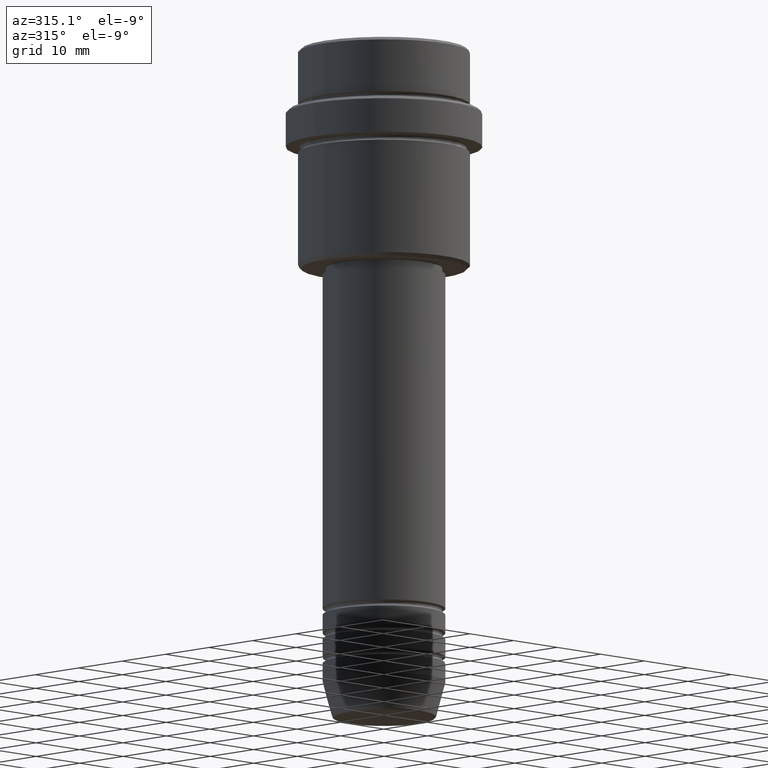
[diagram: clean part render]
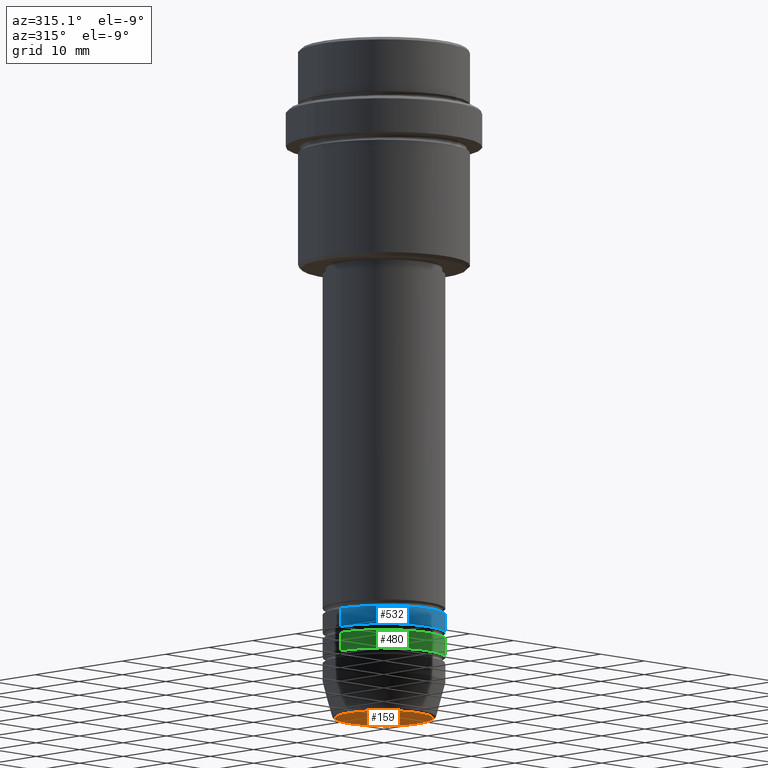
[diagram: same view with three faces highlighted in distinct colors, each labeled with its STEP entity id]
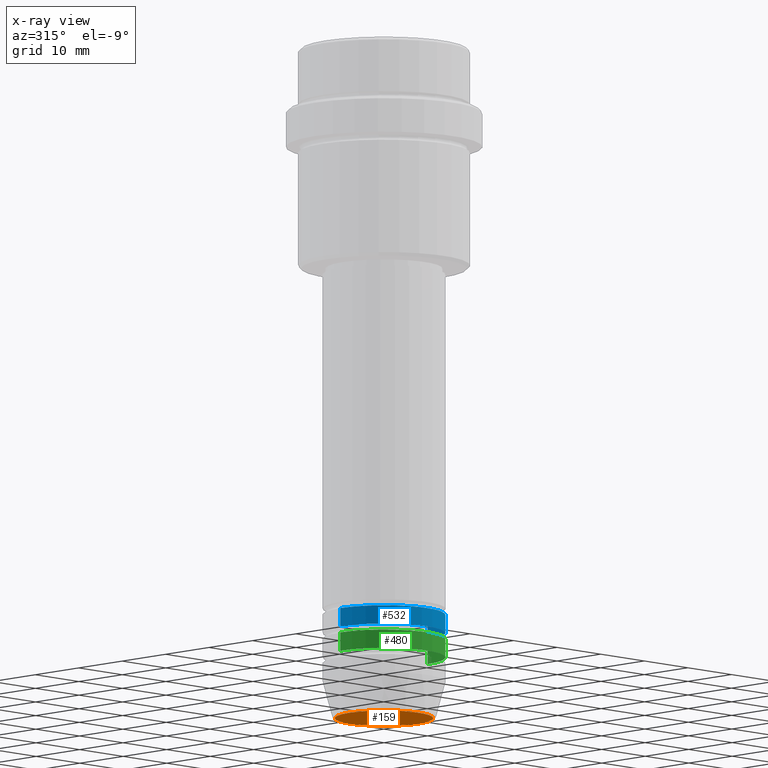
[diagram: x-ray of the same camera — body ghosted, the three highlighted faces saturated]
A machine part, auxiliary view with three faces highlighted in distinct colors.
The next image is the same camera in x-ray (body ghosted, the three faces saturated) — at least one of them is partly hidden behind the body in this view.
Their STEP definitions:

[orange] entity #159 — the highlighted planar face has unit normal (0, -0, 1).
#51 = CIRCLE ( 'NONE', #863, 8.008641351423779753 ) ;
#64 = CARTESIAN_POINT ( 'NONE',  ( 0.000000000000000000, 0.000000000000000000, -110.0000000000000142 ) ) ;
#147 = CIRCLE ( 'NONE', #515, 8.008641351423779753 ) ;
#159 = ADVANCED_FACE ( 'NONE', ( #1313 ), #1010, .F. ) ;
#252 = CARTESIAN_POINT ( 'NONE',  ( -8.008641351423779753, 1.010348648938493172E-15, -110.0000000000000142 ) ) ;
#304 = EDGE_CURVE ( 'NONE', #607, #1402, #51, .T. ) ;
#359 = AXIS2_PLACEMENT_3D ( 'NONE', #464, #904, #361 ) ;
#361 = DIRECTION ( 'NONE',  ( 1.000000000000000000, 0.000000000000000000, 0.000000000000000000 ) ) ;
#436 = DIRECTION ( 'NONE',  ( 0.000000000000000000, 0.000000000000000000, -1.000000000000000000 ) ) ;
#443 = EDGE_LOOP ( 'NONE', ( #1286, #543 ) ) ;
#464 = CARTESIAN_POINT ( 'NONE',  ( 0.000000000000000000, 0.000000000000000000, -110.0000000000000142 ) ) ;
#503 = DIRECTION ( 'NONE',  ( 0.000000000000000000, 0.000000000000000000, -1.000000000000000000 ) ) ;
#515 = AXIS2_PLACEMENT_3D ( 'NONE', #64, #503, #846 ) ;
#543 = ORIENTED_EDGE ( 'NONE', *, *, #304, .T. ) ;
#607 = VERTEX_POINT ( 'NONE', #252 ) ;
#815 = CARTESIAN_POINT ( 'NONE',  ( 8.008641351423779753, 0.000000000000000000, -110.0000000000000142 ) ) ;
#846 = DIRECTION ( 'NONE',  ( 1.000000000000000000, 0.000000000000000000, 0.000000000000000000 ) ) ;
#860 = EDGE_CURVE ( 'NONE', #1402, #607, #147, .T. ) ;
#863 = AXIS2_PLACEMENT_3D ( 'NONE', #1088, #436, #875 ) ;
#875 = DIRECTION ( 'NONE',  ( 1.000000000000000000, 0.000000000000000000, 0.000000000000000000 ) ) ;
#904 = DIRECTION ( 'NONE',  ( 0.000000000000000000, -0.000000000000000000, 1.000000000000000000 ) ) ;
#1010 = PLANE ( 'NONE',  #359 ) ;
#1088 = CARTESIAN_POINT ( 'NONE',  ( 0.000000000000000000, 0.000000000000000000, -110.0000000000000142 ) ) ;
#1286 = ORIENTED_EDGE ( 'NONE', *, *, #860, .T. ) ;
#1313 = FACE_OUTER_BOUND ( 'NONE', #443, .T. ) ;
#1402 = VERTEX_POINT ( 'NONE', #815 ) ;

[blue] entity #532 — the highlighted cylindrical surface (partial cylindrical patch) has radius 10 mm, axis along (-0, -0, 1).
#57 = AXIS2_PLACEMENT_3D ( 'NONE', #569, #539, #1311 ) ;
#85 = DIRECTION ( 'NONE',  ( -0.000000000000000000, -0.000000000000000000, 1.000000000000000000 ) ) ;
#100 = DIRECTION ( 'NONE',  ( 1.000000000000000000, 0.000000000000000000, 0.000000000000000000 ) ) ;
#144 = AXIS2_PLACEMENT_3D ( 'NONE', #415, #311, #1369 ) ;
#212 = CARTESIAN_POINT ( 'NONE',  ( 10.00000000000000000, 0.000000000000000000, -95.99999999999988631 ) ) ;
#223 = ORIENTED_EDGE ( 'NONE', *, *, #1110, .T. ) ;
#229 = CARTESIAN_POINT ( 'NONE',  ( -10.00000000000000000, 1.224646799147353256E-15, -92.99999999999988631 ) ) ;
#290 = VERTEX_POINT ( 'NONE', #212 ) ;
#311 = DIRECTION ( 'NONE',  ( -0.000000000000000000, -0.000000000000000000, 1.000000000000000000 ) ) ;
#364 = ORIENTED_EDGE ( 'NONE', *, *, #979, .T. ) ;
#415 = CARTESIAN_POINT ( 'NONE',  ( 0.000000000000000000, 0.000000000000000000, 0.000000000000000000 ) ) ;
#434 = VECTOR ( 'NONE', #85, 1000.000000000000000 ) ;
#532 = ADVANCED_FACE ( 'NONE', ( #944 ), #1275, .T. ) ;
#539 = DIRECTION ( 'NONE',  ( -0.000000000000000000, -0.000000000000000000, 1.000000000000000000 ) ) ;
#569 = CARTESIAN_POINT ( 'NONE',  ( 0.000000000000000000, 0.000000000000000000, -92.99999999999988631 ) ) ;
#584 = AXIS2_PLACEMENT_3D ( 'NONE', #764, #771, #100 ) ;
#610 = DIRECTION ( 'NONE',  ( -0.000000000000000000, -0.000000000000000000, 1.000000000000000000 ) ) ;
#628 = LINE ( 'NONE', #858, #1005 ) ;
#680 = CARTESIAN_POINT ( 'NONE',  ( 10.00000000000000000, 0.000000000000000000, -92.99999999999988631 ) ) ;
#764 = CARTESIAN_POINT ( 'NONE',  ( 0.000000000000000000, 0.000000000000000000, -95.99999999999988631 ) ) ;
#771 = DIRECTION ( 'NONE',  ( -0.000000000000000000, -0.000000000000000000, 1.000000000000000000 ) ) ;
#832 = ORIENTED_EDGE ( 'NONE', *, *, #955, .F. ) ;
#844 = CIRCLE ( 'NONE', #584, 10.00000000000000000 ) ;
#851 = CARTESIAN_POINT ( 'NONE',  ( -10.00000000000000000, 1.224646799147353256E-15, 0.000000000000000000 ) ) ;
#855 = EDGE_LOOP ( 'NONE', ( #832, #223, #364, #1070 ) ) ;
#858 = CARTESIAN_POINT ( 'NONE',  ( 10.00000000000000000, 0.000000000000000000, 0.000000000000000000 ) ) ;
#901 = VERTEX_POINT ( 'NONE', #680 ) ;
#944 = FACE_OUTER_BOUND ( 'NONE', #855, .T. ) ;
#955 = EDGE_CURVE ( 'NONE', #1321, #1296, #1073, .T. ) ;
#979 = EDGE_CURVE ( 'NONE', #290, #901, #628, .T. ) ;
#1005 = VECTOR ( 'NONE', #610, 1000.000000000000000 ) ;
#1070 = ORIENTED_EDGE ( 'NONE', *, *, #1089, .F. ) ;
#1073 = LINE ( 'NONE', #851, #434 ) ;
#1089 = EDGE_CURVE ( 'NONE', #1296, #901, #1115, .T. ) ;
#1110 = EDGE_CURVE ( 'NONE', #1321, #290, #844, .T. ) ;
#1115 = CIRCLE ( 'NONE', #57, 10.00000000000000000 ) ;
#1275 = CYLINDRICAL_SURFACE ( 'NONE', #144, 10.00000000000000000 ) ;
#1296 = VERTEX_POINT ( 'NONE', #229 ) ;
#1298 = CARTESIAN_POINT ( 'NONE',  ( -10.00000000000000000, 1.224646799147353256E-15, -95.99999999999988631 ) ) ;
#1311 = DIRECTION ( 'NONE',  ( 1.000000000000000000, 0.000000000000000000, 0.000000000000000000 ) ) ;
#1321 = VERTEX_POINT ( 'NONE', #1298 ) ;
#1369 = DIRECTION ( 'NONE',  ( 1.000000000000000000, 0.000000000000000000, 0.000000000000000000 ) ) ;

[green] entity #480 — the highlighted cylindrical surface (partial cylindrical patch) has radius 10 mm, axis along (-0, -0, 1).
#12 = LINE ( 'NONE', #1111, #1339 ) ;
#48 = CARTESIAN_POINT ( 'NONE',  ( -10.00000000000000000, 1.224646799147353256E-15, 0.000000000000000000 ) ) ;
#53 = EDGE_CURVE ( 'NONE', #1234, #383, #981, .T. ) ;
#114 = DIRECTION ( 'NONE',  ( -0.000000000000000000, -0.000000000000000000, 1.000000000000000000 ) ) ;
#138 = VERTEX_POINT ( 'NONE', #555 ) ;
#166 = VERTEX_POINT ( 'NONE', #280 ) ;
#188 = CARTESIAN_POINT ( 'NONE',  ( 0.000000000000000000, 0.000000000000000000, 0.000000000000000000 ) ) ;
#236 = DIRECTION ( 'NONE',  ( -0.000000000000000000, -0.000000000000000000, 1.000000000000000000 ) ) ;
#280 = CARTESIAN_POINT ( 'NONE',  ( 10.00000000000000000, 0.000000000000000000, -96.99999999999988631 ) ) ;
#318 = CYLINDRICAL_SURFACE ( 'NONE', #1019, 10.00000000000000000 ) ;
#375 = EDGE_CURVE ( 'NONE', #1234, #138, #1126, .T. ) ;
#383 = VERTEX_POINT ( 'NONE', #917 ) ;
#480 = ADVANCED_FACE ( 'NONE', ( #857 ), #318, .T. ) ;
#491 = DIRECTION ( 'NONE',  ( -0.000000000000000000, -0.000000000000000000, 1.000000000000000000 ) ) ;
#530 = DIRECTION ( 'NONE',  ( -0.000000000000000000, -0.000000000000000000, 1.000000000000000000 ) ) ;
#550 = DIRECTION ( 'NONE',  ( 1.000000000000000000, 0.000000000000000000, 0.000000000000000000 ) ) ;
#555 = CARTESIAN_POINT ( 'NONE',  ( -10.00000000000000000, 1.224646799147353256E-15, -96.99999999999988631 ) ) ;
#627 = DIRECTION ( 'NONE',  ( 1.000000000000000000, 0.000000000000000000, 0.000000000000000000 ) ) ;
#677 = CARTESIAN_POINT ( 'NONE',  ( 0.000000000000000000, 0.000000000000000000, -96.99999999999988631 ) ) ;
#728 = ORIENTED_EDGE ( 'NONE', *, *, #1303, .F. ) ;
#735 = CIRCLE ( 'NONE', #1189, 10.00000000000000000 ) ;
#756 = CARTESIAN_POINT ( 'NONE',  ( 0.000000000000000000, 0.000000000000000000, -99.99999999999990052 ) ) ;
#857 = FACE_OUTER_BOUND ( 'NONE', #980, .T. ) ;
#917 = CARTESIAN_POINT ( 'NONE',  ( 10.00000000000000000, 0.000000000000000000, -99.99999999999990052 ) ) ;
#980 = EDGE_LOOP ( 'NONE', ( #1148, #1154, #1143, #728 ) ) ;
#981 = CIRCLE ( 'NONE', #1268, 10.00000000000000000 ) ;
#1019 = AXIS2_PLACEMENT_3D ( 'NONE', #188, #1178, #627 ) ;
#1093 = VECTOR ( 'NONE', #491, 1000.000000000000000 ) ;
#1111 = CARTESIAN_POINT ( 'NONE',  ( 10.00000000000000000, 0.000000000000000000, 0.000000000000000000 ) ) ;
#1126 = LINE ( 'NONE', #48, #1093 ) ;
#1127 = DIRECTION ( 'NONE',  ( 1.000000000000000000, 0.000000000000000000, 0.000000000000000000 ) ) ;
#1143 = ORIENTED_EDGE ( 'NONE', *, *, #1385, .T. ) ;
#1148 = ORIENTED_EDGE ( 'NONE', *, *, #375, .F. ) ;
#1154 = ORIENTED_EDGE ( 'NONE', *, *, #53, .T. ) ;
#1178 = DIRECTION ( 'NONE',  ( -0.000000000000000000, -0.000000000000000000, 1.000000000000000000 ) ) ;
#1189 = AXIS2_PLACEMENT_3D ( 'NONE', #677, #114, #550 ) ;
#1234 = VERTEX_POINT ( 'NONE', #1255 ) ;
#1255 = CARTESIAN_POINT ( 'NONE',  ( -10.00000000000000000, 1.224646799147353256E-15, -99.99999999999990052 ) ) ;
#1268 = AXIS2_PLACEMENT_3D ( 'NONE', #756, #236, #1127 ) ;
#1303 = EDGE_CURVE ( 'NONE', #138, #166, #735, .T. ) ;
#1339 = VECTOR ( 'NONE', #530, 1000.000000000000000 ) ;
#1385 = EDGE_CURVE ( 'NONE', #383, #166, #12, .T. ) ;